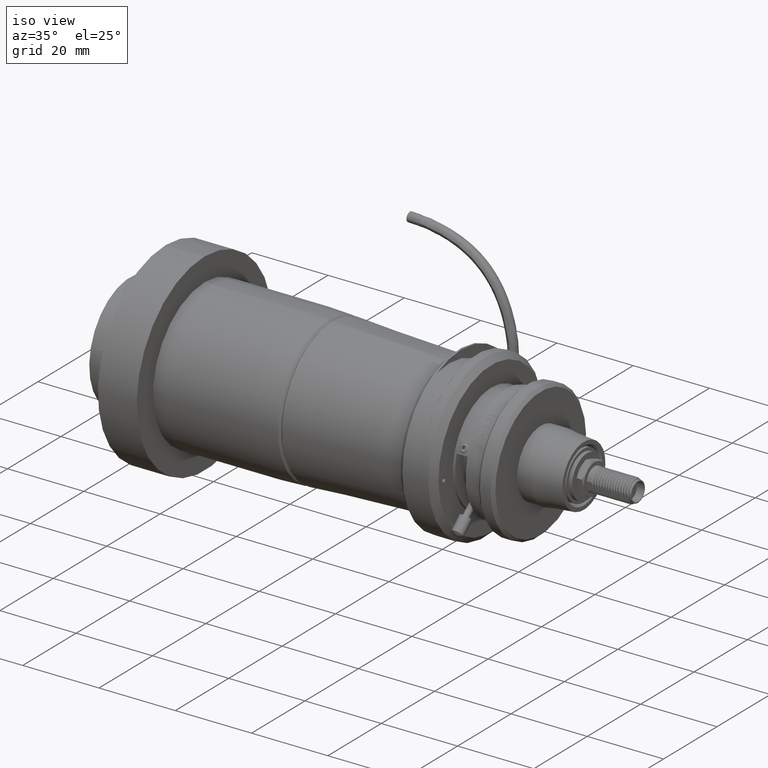
[diagram: clean part render]
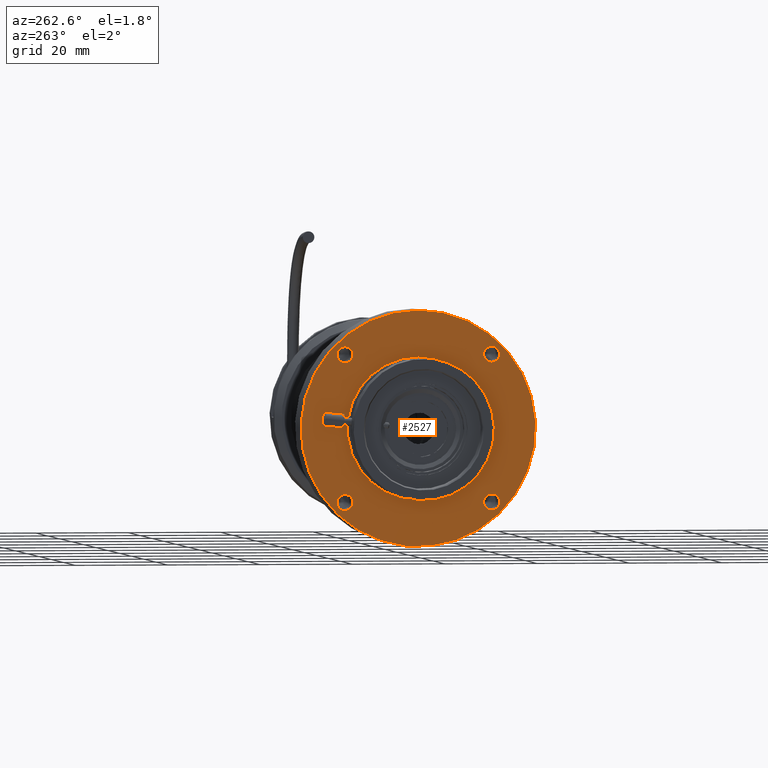
[diagram: tour spotlight — one face highlighted and labeled with its STEP entity id]
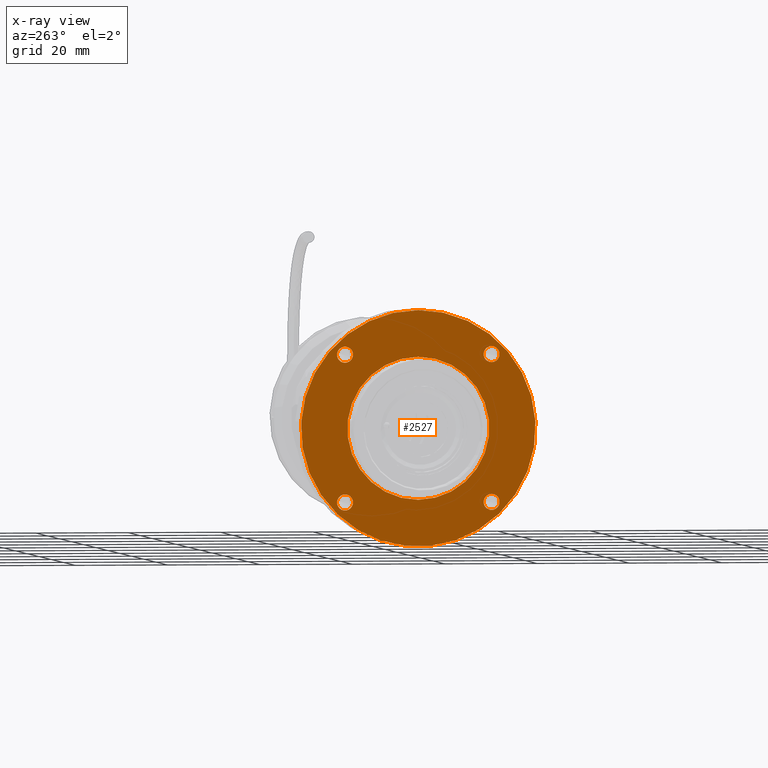
[diagram: x-ray of the same camera — body ghosted, this tour face saturated]
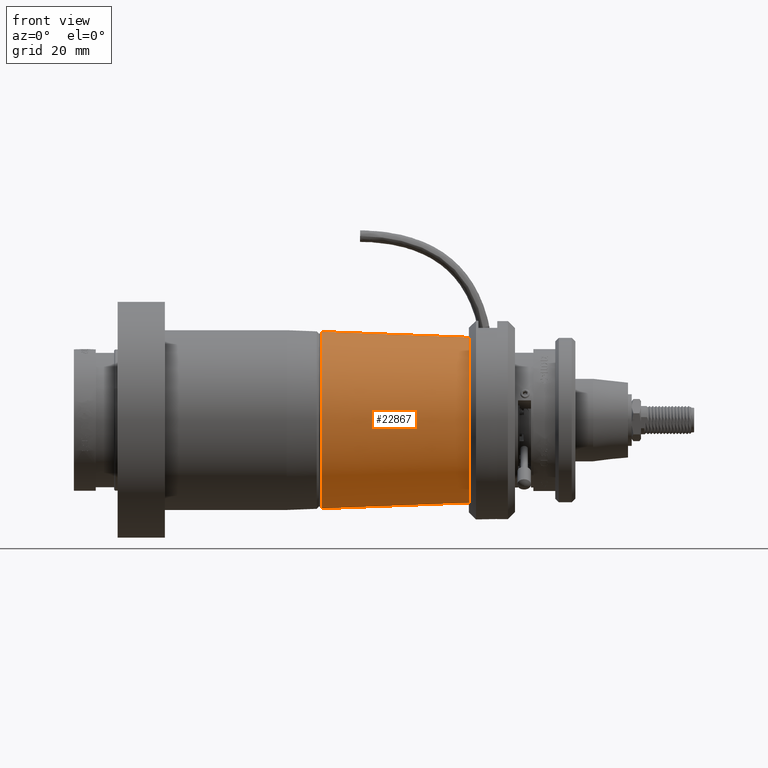
[diagram: tour spotlight — one face highlighted and labeled with its STEP entity id]
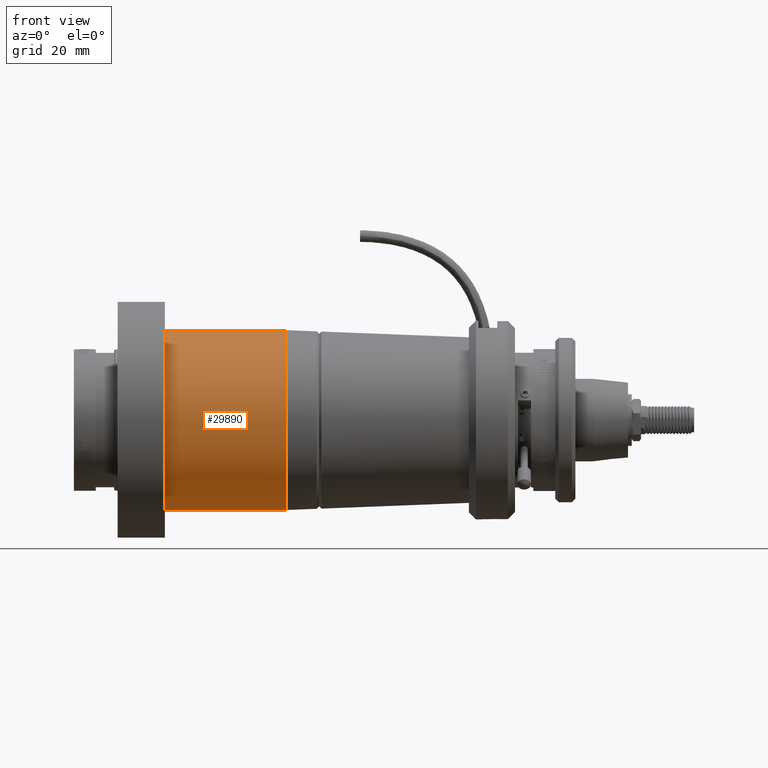
[diagram: tour spotlight — one face highlighted and labeled with its STEP entity id]
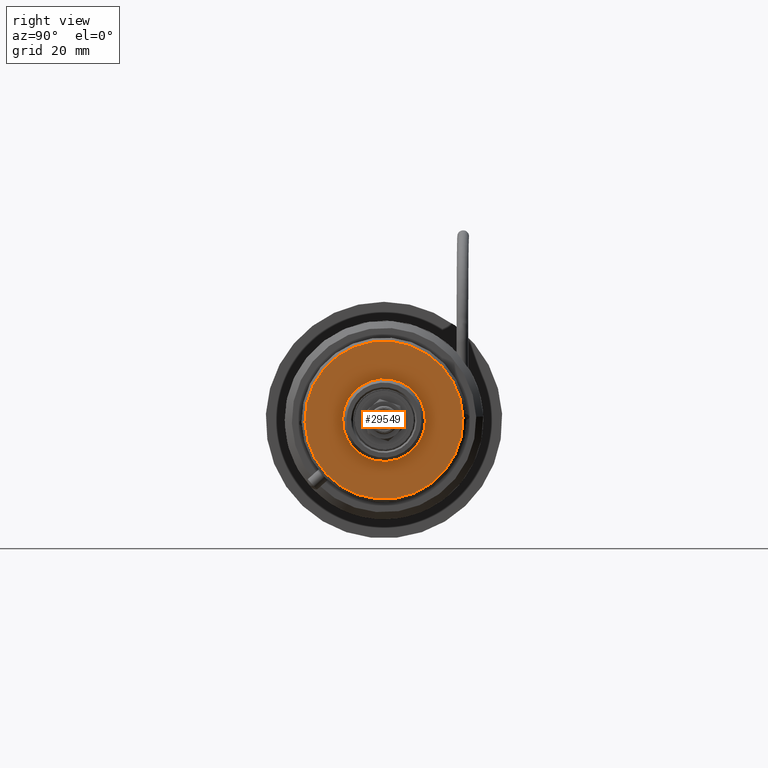
[diagram: tour spotlight — one face highlighted and labeled with its STEP entity id]
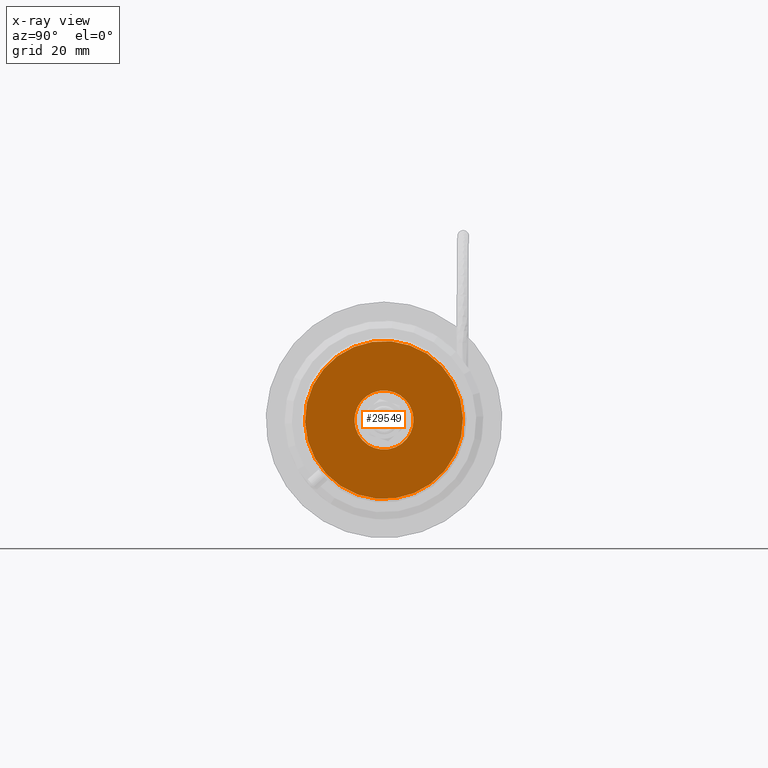
[diagram: x-ray of the same camera — body ghosted, this tour face saturated]
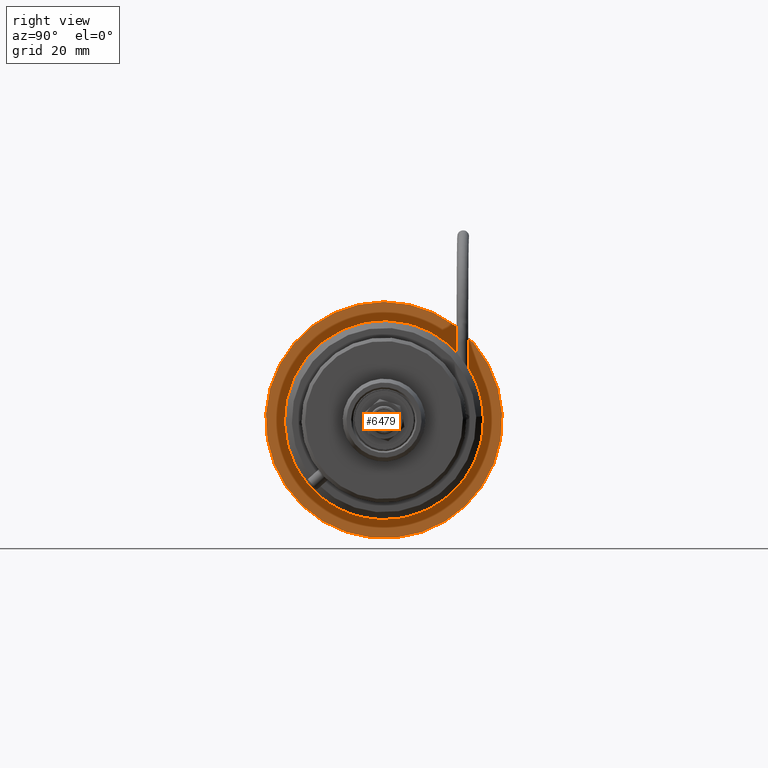
[diagram: tour spotlight — one face highlighted and labeled with its STEP entity id]
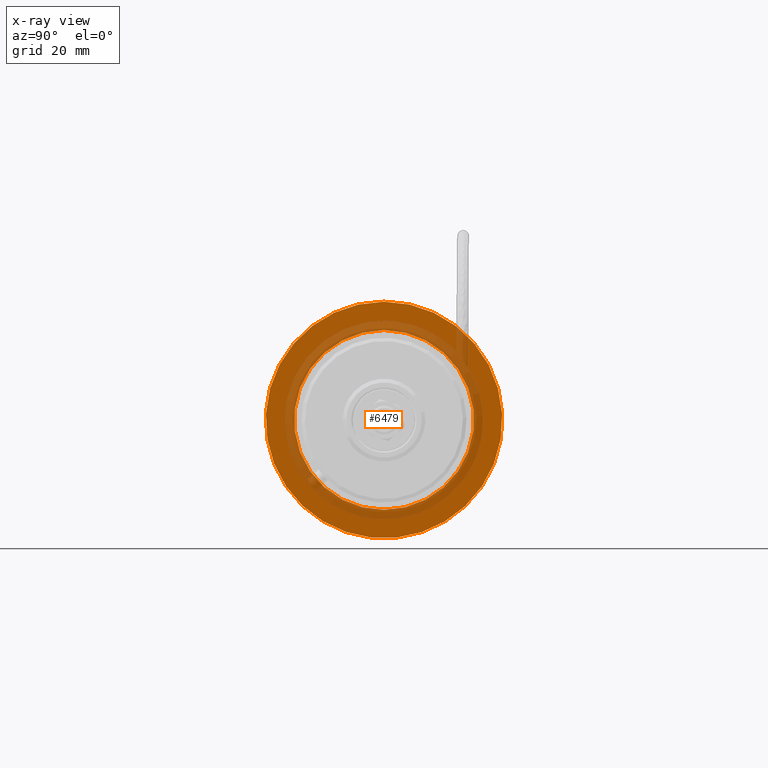
[diagram: x-ray of the same camera — body ghosted, this tour face saturated]
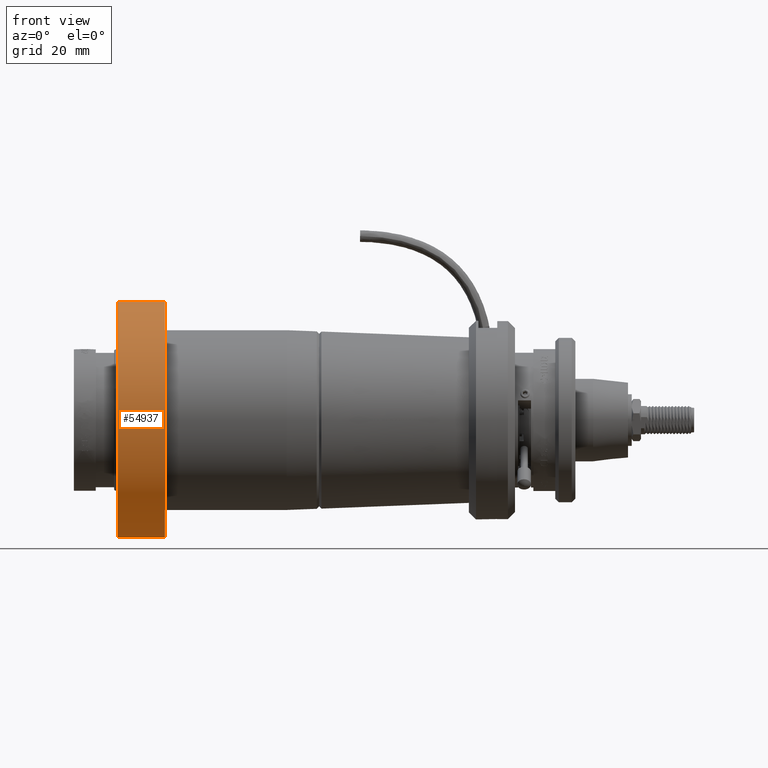
[diagram: tour spotlight — one face highlighted and labeled with its STEP entity id]
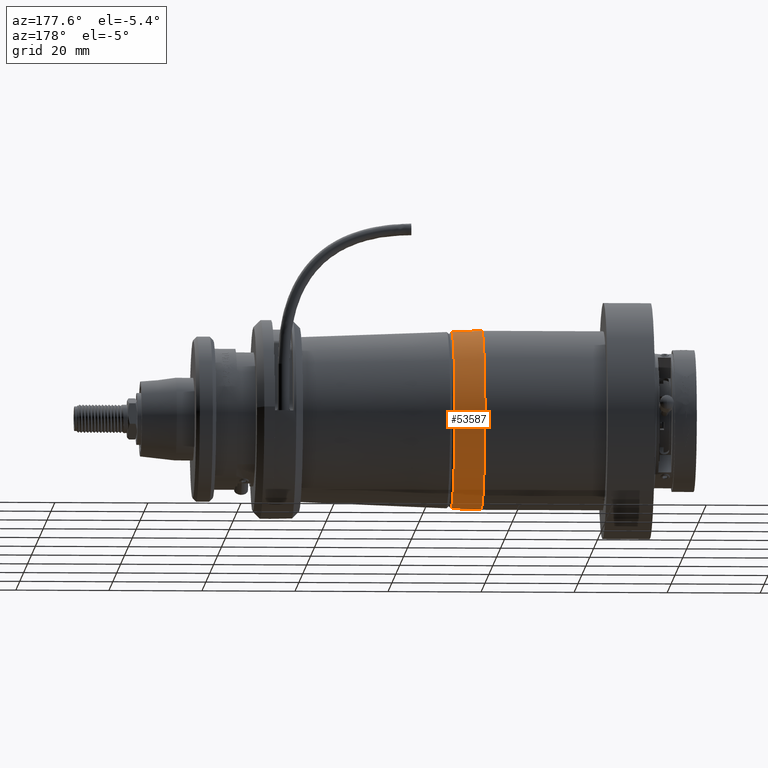
[diagram: tour spotlight — one face highlighted and labeled with its STEP entity id]
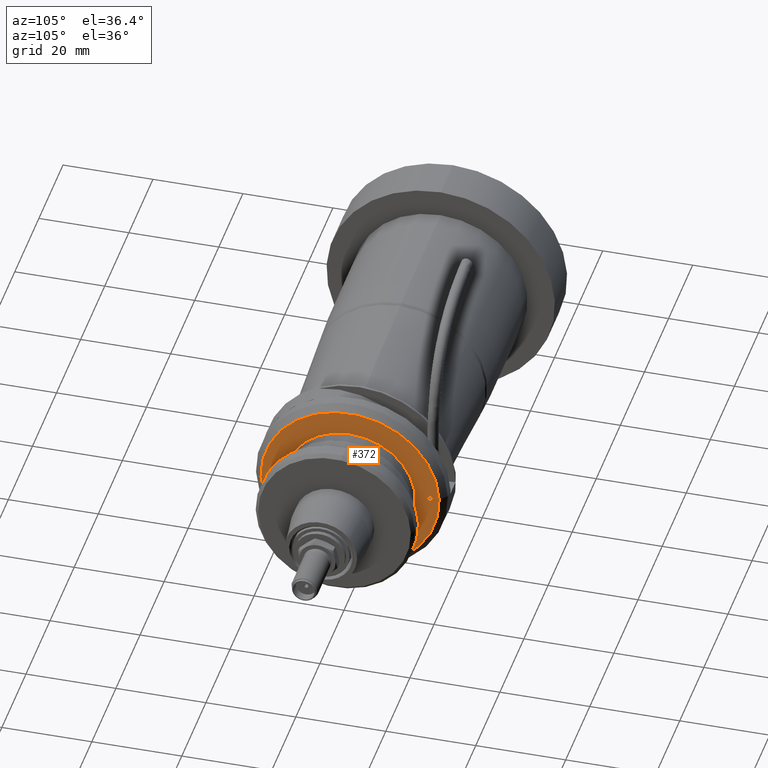
[diagram: tour spotlight — one face highlighted and labeled with its STEP entity id]
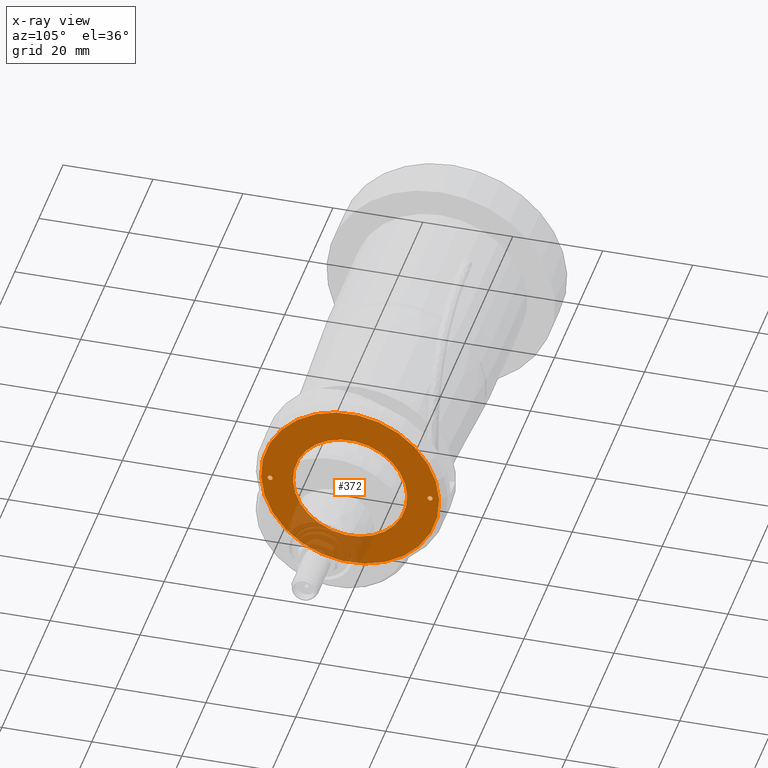
[diagram: x-ray of the same camera — body ghosted, this tour face saturated]
A machine part: a face-by-face anatomy tour. The part has 1286 B-rep faces; the first image is the clean iso view, then the 8 largest visible faces are spotlighted one at a time (largest first), each with its STEP entity span.

Face 1 — auxiliary view, entity #2527. An x-ray twin of the same camera follows (body ghosted, this face saturated) — the face is partly hidden behind the body. In plain terms, the highlighted planar face has unit normal (1, 0, 0).
Definition (entity closure, byte-faithful):
#986 = DIRECTION ( 'NONE',  ( -1.000000000000000000, -0.0000000000000000000, -0.0000000000000000000 ) ) ;
#1406 = DIRECTION ( 'NONE',  ( -1.000000000000000000, -0.0000000000000000000, -0.0000000000000000000 ) ) ;
#1614 = CIRCLE ( 'NONE', #61360, 1.727199999999987900 ) ;
#2527 = ADVANCED_FACE ( 'NONE', ( #60452, #5426, #45653, #49538, #14038, #4002 ), #59393, .F. ) ;
#2673 = AXIS2_PLACEMENT_3D ( 'NONE', #30492, #30435, #30296 ) ;
#2755 = DIRECTION ( 'NONE',  ( 0.0000000000000000000, 0.0000000000000000000, 1.000000000000000000 ) ) ;
#4002 = FACE_OUTER_BOUND ( 'NONE', #26998, .T. ) ;
#4800 = EDGE_LOOP ( 'NONE', ( #55442 ) ) ;
#5426 = FACE_BOUND ( 'NONE', #63394, .T. ) ;
#10509 = CIRCLE ( 'NONE', #11964, 25.39999999999999900 ) ;
#11860 = CARTESIAN_POINT ( 'NONE',  ( -12.17385033969020800, 15.40345842648230100, 14.88301259286225800 ) ) ;
#11964 = AXIS2_PLACEMENT_3D ( 'NONE', #65999, #34719, #2755 ) ;
#13440 = CARTESIAN_POINT ( 'NONE',  ( -12.17385033969020800, 15.40345842648230100, 13.15581259286226900 ) ) ;
#14038 = FACE_BOUND ( 'NONE', #27861, .T. ) ;
#18815 = DIRECTION ( 'NONE',  ( 0.0000000000000000000, 0.0000000000000000000, 1.000000000000000000 ) ) ;
#19059 = ORIENTED_EDGE ( 'NONE', *, *, #20032, .F. ) ;
#19959 = CIRCLE ( 'NONE', #21427, 1.727199999999989400 ) ;
#20032 = EDGE_CURVE ( 'NONE', #33057, #33057, #31066, .T. ) ;
#21427 = AXIS2_PLACEMENT_3D ( 'NONE', #13440, #50280, #18815 ) ;
#22297 = EDGE_LOOP ( 'NONE', ( #19059 ) ) ;
#23639 = EDGE_CURVE ( 'NONE', #58378, #58378, #61113, .T. ) ;
#24261 = CARTESIAN_POINT ( 'NONE',  ( -12.17385033969020800, -16.34654157351752300, 14.88301259286243400 ) ) ;
#24284 = AXIS2_PLACEMENT_3D ( 'NONE', #24564, #61231, #29883 ) ;
#24564 = CARTESIAN_POINT ( 'NONE',  ( -12.17385033969020600, -0.4715415735176992600, -2.719187407137724200 ) ) ;
#25397 = EDGE_CURVE ( 'NONE', #64082, #64082, #1614, .T. ) ;
#26998 = EDGE_LOOP ( 'NONE', ( #33622 ) ) ;
#27241 = ORIENTED_EDGE ( 'NONE', *, *, #23639, .F. ) ;
#27861 = EDGE_LOOP ( 'NONE', ( #68201 ) ) ;
#29883 = DIRECTION ( 'NONE',  ( 0.0000000000000000000, 0.0000000000000000000, 1.000000000000000000 ) ) ;
#30296 = DIRECTION ( 'NONE',  ( 0.0000000000000000000, 0.0000000000000000000, 1.000000000000000000 ) ) ;
#30435 = DIRECTION ( 'NONE',  ( -1.000000000000000000, -0.0000000000000000000, -0.0000000000000000000 ) ) ;
#30492 = CARTESIAN_POINT ( 'NONE',  ( -12.17385033969020800, 15.40345842648223700, -18.59418740713778100 ) ) ;
#30720 = CARTESIAN_POINT ( 'NONE',  ( -12.17385033969020600, -0.4715415735176992600, 22.68081259286227400 ) ) ;
#31066 = CIRCLE ( 'NONE', #2673, 1.727199999999991200 ) ;
#33030 = CARTESIAN_POINT ( 'NONE',  ( -12.17385033969020800, -16.34654157351769800, -18.59418740713771700 ) ) ;
#33057 = VERTEX_POINT ( 'NONE', #55445 ) ;
#33419 = CARTESIAN_POINT ( 'NONE',  ( -12.17385033969020800, -16.34654157351752300, 13.15581259286244300 ) ) ;
#33622 = ORIENTED_EDGE ( 'NONE', *, *, #39039, .T. ) ;
#34719 = DIRECTION ( 'NONE',  ( -1.000000000000000000, -0.0000000000000000000, -0.0000000000000000000 ) ) ;
#35204 = EDGE_CURVE ( 'NONE', #47227, #47227, #54384, .T. ) ;
#35684 = AXIS2_PLACEMENT_3D ( 'NONE', #59686, #59176, #59095 ) ;
#37502 = VERTEX_POINT ( 'NONE', #30720 ) ;
#38263 = DIRECTION ( 'NONE',  ( 0.0000000000000000000, 0.0000000000000000000, 1.000000000000000000 ) ) ;
#38652 = DIRECTION ( 'NONE',  ( 0.0000000000000000000, 0.0000000000000000000, 1.000000000000000000 ) ) ;
#39039 = EDGE_CURVE ( 'NONE', #37502, #37502, #10509, .T. ) ;
#45334 = CARTESIAN_POINT ( 'NONE',  ( -12.17385033969020800, -16.34654157351769800, -16.86698740713773100 ) ) ;
#45653 = FACE_BOUND ( 'NONE', #22297, .T. ) ;
#47227 = VERTEX_POINT ( 'NONE', #51313 ) ;
#49538 = FACE_BOUND ( 'NONE', #4800, .T. ) ;
#50280 = DIRECTION ( 'NONE',  ( -1.000000000000000000, -0.0000000000000000000, -0.0000000000000000000 ) ) ;
#51313 = CARTESIAN_POINT ( 'NONE',  ( -12.17385033969020600, -0.4715415735176992600, 12.64781259286227800 ) ) ;
#52502 = AXIS2_PLACEMENT_3D ( 'NONE', #33419, #1406, #38652 ) ;
#53247 = VERTEX_POINT ( 'NONE', #11860 ) ;
#54384 = CIRCLE ( 'NONE', #24284, 15.36700000000000300 ) ;
#55442 = ORIENTED_EDGE ( 'NONE', *, *, #66595, .F. ) ;
#55445 = CARTESIAN_POINT ( 'NONE',  ( -12.17385033969020800, 15.40345842648223700, -16.86698740713778800 ) ) ;
#58378 = VERTEX_POINT ( 'NONE', #24261 ) ;
#59095 = DIRECTION ( 'NONE',  ( 0.0000000000000000000, 0.0000000000000000000, -1.000000000000000000 ) ) ;
#59176 = DIRECTION ( 'NONE',  ( 1.000000000000000000, 0.0000000000000000000, 0.0000000000000000000 ) ) ;
#59393 = PLANE ( 'NONE',  #35684 ) ;
#59686 = CARTESIAN_POINT ( 'NONE',  ( -12.17385033969020600, 14.89545842648230300, -2.719187407137724200 ) ) ;
#60452 = FACE_BOUND ( 'NONE', #61114, .T. ) ;
#61113 = CIRCLE ( 'NONE', #52502, 1.727199999999991200 ) ;
#61114 = EDGE_LOOP ( 'NONE', ( #27241 ) ) ;
#61231 = DIRECTION ( 'NONE',  ( -1.000000000000000000, -0.0000000000000000000, -0.0000000000000000000 ) ) ;
#61360 = AXIS2_PLACEMENT_3D ( 'NONE', #33030, #986, #38263 ) ;
#62952 = ORIENTED_EDGE ( 'NONE', *, *, #25397, .F. ) ;
#63394 = EDGE_LOOP ( 'NONE', ( #62952 ) ) ;
#64082 = VERTEX_POINT ( 'NONE', #45334 ) ;
#65999 = CARTESIAN_POINT ( 'NONE',  ( -12.17385033969020600, -0.4715415735176992600, -2.719187407137724200 ) ) ;
#66595 = EDGE_CURVE ( 'NONE', #53247, #53247, #19959, .T. ) ;
#68201 = ORIENTED_EDGE ( 'NONE', *, *, #35204, .F. ) ;

Face 2 — front view, entity #22867. In plain terms, the highlighted conical surface has half-angle 2.231 deg.
Definition (entity closure, byte-faithful):
#939 = CARTESIAN_POINT ( 'NONE',  ( 63.26414966030979800, -0.4715415735176992600, 15.06081259286227300 ) ) ;
#2905 = EDGE_CURVE ( 'NONE', #25651, #25651, #13692, .T. ) ;
#7767 = DIRECTION ( 'NONE',  ( 0.0000000000000000000, 0.0000000000000000000, 1.000000000000000000 ) ) ;
#9200 = CARTESIAN_POINT ( 'NONE',  ( 63.26414966030979800, -0.4715415735176992600, -2.719187407137724200 ) ) ;
#9516 = FACE_BOUND ( 'NONE', #55065, .T. ) ;
#10713 = CONICAL_SURFACE ( 'NONE', #23019, 17.77999999999999800, 0.03894134309703932400 ) ;
#11982 = ORIENTED_EDGE ( 'NONE', *, *, #65786, .T. ) ;
#13175 = DIRECTION ( 'NONE',  ( -1.000000000000000000, -0.0000000000000000000, -0.0000000000000000000 ) ) ;
#13692 = CIRCLE ( 'NONE', #27279, 19.01378230013613900 ) ;
#14608 = DIRECTION ( 'NONE',  ( 0.0000000000000000000, 0.0000000000000000000, 1.000000000000000000 ) ) ;
#18976 = EDGE_LOOP ( 'NONE', ( #51973 ) ) ;
#22867 = ADVANCED_FACE ( 'NONE', ( #52436, #9516 ), #10713, .T. ) ;
#23019 = AXIS2_PLACEMENT_3D ( 'NONE', #44723, #13175, #7767 ) ;
#25651 = VERTEX_POINT ( 'NONE', #43532 ) ;
#27279 = AXIS2_PLACEMENT_3D ( 'NONE', #43892, #43825, #43746 ) ;
#27966 = CIRCLE ( 'NONE', #41669, 17.77999999999999800 ) ;
#41669 = AXIS2_PLACEMENT_3D ( 'NONE', #9200, #46107, #14608 ) ;
#43532 = CARTESIAN_POINT ( 'NONE',  ( 31.59707062348224200, -0.4715415735176992600, 16.29459489299841500 ) ) ;
#43746 = DIRECTION ( 'NONE',  ( 0.0000000000000000000, 0.0000000000000000000, 1.000000000000000000 ) ) ;
#43825 = DIRECTION ( 'NONE',  ( -1.000000000000000000, -0.0000000000000000000, -0.0000000000000000000 ) ) ;
#43892 = CARTESIAN_POINT ( 'NONE',  ( 31.59707062348224200, -0.4715415735176992600, -2.719187407137724200 ) ) ;
#44723 = CARTESIAN_POINT ( 'NONE',  ( 63.26414966030979800, -0.4715415735176992600, -2.719187407137724200 ) ) ;
#46107 = DIRECTION ( 'NONE',  ( -1.000000000000000000, -0.0000000000000000000, -0.0000000000000000000 ) ) ;
#51973 = ORIENTED_EDGE ( 'NONE', *, *, #2905, .F. ) ;
#52436 = FACE_OUTER_BOUND ( 'NONE', #18976, .T. ) ;
#55065 = EDGE_LOOP ( 'NONE', ( #11982 ) ) ;
#58818 = VERTEX_POINT ( 'NONE', #939 ) ;
#65786 = EDGE_CURVE ( 'NONE', #58818, #58818, #27966, .T. ) ;

Face 3 — front view, entity #29890. In plain terms, the highlighted cylindrical surface (bore or boss wall) has radius 19.304 mm, axis along (-1, -0, -0).
Definition (entity closure, byte-faithful):
#3374 = DIRECTION ( 'NONE',  ( 0.0000000000000000000, 0.0000000000000000000, 1.000000000000000000 ) ) ;
#8830 = DIRECTION ( 'NONE',  ( -1.000000000000000000, -0.0000000000000000000, -0.0000000000000000000 ) ) ;
#10847 = CARTESIAN_POINT ( 'NONE',  ( -2.013850339690204100, -0.4715415735176992600, -2.719187407137724200 ) ) ;
#13515 = FACE_OUTER_BOUND ( 'NONE', #57424, .T. ) ;
#13585 = FACE_OUTER_BOUND ( 'NONE', #21964, .T. ) ;
#16256 = DIRECTION ( 'NONE',  ( 0.0000000000000000000, 0.0000000000000000000, 1.000000000000000000 ) ) ;
#21964 = EDGE_LOOP ( 'NONE', ( #25365 ) ) ;
#22653 = CARTESIAN_POINT ( 'NONE',  ( 24.14814966030979400, -0.4715415735176992600, -2.719187407137724200 ) ) ;
#25365 = ORIENTED_EDGE ( 'NONE', *, *, #56922, .T. ) ;
#27939 = CARTESIAN_POINT ( 'NONE',  ( -31.60859516714725700, -0.4715415735176992600, -2.719187407137724200 ) ) ;
#27980 = DIRECTION ( 'NONE',  ( 0.0000000000000000000, 0.0000000000000000000, 1.000000000000000000 ) ) ;
#29890 = ADVANCED_FACE ( 'NONE', ( #13585, #13515 ), #47380, .T. ) ;
#32297 = CARTESIAN_POINT ( 'NONE',  ( 24.14814966030979400, -0.4715415735176992600, 16.58481259286227400 ) ) ;
#35323 = CIRCLE ( 'NONE', #62111, 19.30399999999999800 ) ;
#36973 = CIRCLE ( 'NONE', #64277, 19.30399999999999800 ) ;
#43634 = VERTEX_POINT ( 'NONE', #58356 ) ;
#47380 = CYLINDRICAL_SURFACE ( 'NONE', #58816, 19.30399999999999800 ) ;
#47719 = DIRECTION ( 'NONE',  ( -1.000000000000000000, -0.0000000000000000000, -0.0000000000000000000 ) ) ;
#56515 = EDGE_CURVE ( 'NONE', #43634, #43634, #35323, .T. ) ;
#56922 = EDGE_CURVE ( 'NONE', #60383, #60383, #36973, .T. ) ;
#57424 = EDGE_LOOP ( 'NONE', ( #60209 ) ) ;
#58356 = CARTESIAN_POINT ( 'NONE',  ( -2.013850339690204100, -0.4715415735176992600, 16.58481259286227400 ) ) ;
#58816 = AXIS2_PLACEMENT_3D ( 'NONE', #27939, #8830, #3374 ) ;
#59335 = DIRECTION ( 'NONE',  ( -1.000000000000000000, -0.0000000000000000000, -0.0000000000000000000 ) ) ;
#60209 = ORIENTED_EDGE ( 'NONE', *, *, #56515, .F. ) ;
#60383 = VERTEX_POINT ( 'NONE', #32297 ) ;
#62111 = AXIS2_PLACEMENT_3D ( 'NONE', #10847, #47719, #16256 ) ;
#64277 = AXIS2_PLACEMENT_3D ( 'NONE', #22653, #59335, #27980 ) ;

Face 4 — right view, entity #29549. An x-ray twin of the same camera follows (body ghosted, this face saturated) — the face is partly hidden behind the body. In plain terms, the highlighted planar face has unit normal (-1, 0, 0).
Definition (entity closure, byte-faithful):
#5443 = CIRCLE ( 'NONE', #27950, 16.96719999999999800 ) ;
#10824 = DIRECTION ( 'NONE',  ( -1.000000000000000000, 0.0000000000000000000, 0.0000000000000000000 ) ) ;
#10953 = FACE_OUTER_BOUND ( 'NONE', #37736, .T. ) ;
#11146 = FACE_BOUND ( 'NONE', #38572, .T. ) ;
#11516 = CIRCLE ( 'NONE', #12362, 6.350000000000000500 ) ;
#12362 = AXIS2_PLACEMENT_3D ( 'NONE', #42461, #10824, #47701 ) ;
#16593 = AXIS2_PLACEMENT_3D ( 'NONE', #40739, #67014, #35748 ) ;
#18582 = VERTEX_POINT ( 'NONE', #41011 ) ;
#18842 = ORIENTED_EDGE ( 'NONE', *, *, #37689, .T. ) ;
#23380 = DIRECTION ( 'NONE',  ( 1.000000000000000000, 0.0000000000000000000, 0.0000000000000000000 ) ) ;
#23878 = EDGE_CURVE ( 'NONE', #61689, #61689, #11516, .T. ) ;
#27950 = AXIS2_PLACEMENT_3D ( 'NONE', #54794, #23380, #60046 ) ;
#29549 = ADVANCED_FACE ( 'NONE', ( #10953, #11146 ), #61804, .F. ) ;
#29585 = CARTESIAN_POINT ( 'NONE',  ( 86.12414966030979700, 0.1285519487544571900, 3.602393705568731600 ) ) ;
#35748 = DIRECTION ( 'NONE',  ( 0.0000000000000000000, 0.09450291689325295000, 0.9955245846781820600 ) ) ;
#37689 = EDGE_CURVE ( 'NONE', #18582, #18582, #5443, .T. ) ;
#37736 = EDGE_LOOP ( 'NONE', ( #18842 ) ) ;
#38572 = EDGE_LOOP ( 'NONE', ( #54920 ) ) ;
#40739 = CARTESIAN_POINT ( 'NONE',  ( 86.12414966030979700, 17.17831289315872600, -4.394648521321585100 ) ) ;
#41011 = CARTESIAN_POINT ( 'NONE',  ( 86.12414966030979700, 1.131908317993502300, 14.17207732601392500 ) ) ;
#42461 = CARTESIAN_POINT ( 'NONE',  ( 86.12414966030979700, -0.4715415735176992100, -2.719187407137725100 ) ) ;
#47701 = DIRECTION ( 'NONE',  ( 0.0000000000000000000, 0.09450291689325296400, 0.9955245846781820600 ) ) ;
#54794 = CARTESIAN_POINT ( 'NONE',  ( 86.12414966030979700, -0.4715415735176992100, -2.719187407137725100 ) ) ;
#54920 = ORIENTED_EDGE ( 'NONE', *, *, #23878, .T. ) ;
#60046 = DIRECTION ( 'NONE',  ( 0.0000000000000000000, 0.09450291689325296400, 0.9955245846781821700 ) ) ;
#61689 = VERTEX_POINT ( 'NONE', #29585 ) ;
#61804 = PLANE ( 'NONE',  #16593 ) ;
#67014 = DIRECTION ( 'NONE',  ( -1.000000000000000000, 0.0000000000000000000, 0.0000000000000000000 ) ) ;

Face 5 — right view, entity #6479. An x-ray twin of the same camera follows (body ghosted, this face saturated) — the face is partly hidden behind the body. In plain terms, the highlighted planar face has unit normal (-1, 0, 0).
Definition (entity closure, byte-faithful):
#2240 = ORIENTED_EDGE ( 'NONE', *, *, #38629, .F. ) ;
#2431 = AXIS2_PLACEMENT_3D ( 'NONE', #45240, #13713, #50535 ) ;
#6479 = ADVANCED_FACE ( 'NONE', ( #23275, #23293 ), #30936, .F. ) ;
#7938 = EDGE_LOOP ( 'NONE', ( #36832 ) ) ;
#10847 = CARTESIAN_POINT ( 'NONE',  ( -2.013850339690204100, -0.4715415735176992600, -2.719187407137724200 ) ) ;
#13713 = DIRECTION ( 'NONE',  ( -1.000000000000000000, -0.0000000000000000000, -0.0000000000000000000 ) ) ;
#16256 = DIRECTION ( 'NONE',  ( 0.0000000000000000000, 0.0000000000000000000, 1.000000000000000000 ) ) ;
#23275 = FACE_OUTER_BOUND ( 'NONE', #35961, .T. ) ;
#23293 = FACE_BOUND ( 'NONE', #7938, .T. ) ;
#30846 = DIRECTION ( 'NONE',  ( 0.0000000000000000000, 0.0000000000000000000, 1.000000000000000000 ) ) ;
#30936 = PLANE ( 'NONE',  #55476 ) ;
#31448 = CARTESIAN_POINT ( 'NONE',  ( -2.013850339690204100, 24.92845842648230100, -2.719187407137724200 ) ) ;
#31611 = DIRECTION ( 'NONE',  ( -1.000000000000000000, 0.0000000000000000000, 0.0000000000000000000 ) ) ;
#35323 = CIRCLE ( 'NONE', #62111, 19.30399999999999800 ) ;
#35961 = EDGE_LOOP ( 'NONE', ( #2240 ) ) ;
#36832 = ORIENTED_EDGE ( 'NONE', *, *, #56515, .T. ) ;
#38629 = EDGE_CURVE ( 'NONE', #59036, #59036, #51720, .T. ) ;
#43634 = VERTEX_POINT ( 'NONE', #58356 ) ;
#45240 = CARTESIAN_POINT ( 'NONE',  ( -2.013850339690204100, -0.4715415735176992600, -2.719187407137724200 ) ) ;
#47719 = DIRECTION ( 'NONE',  ( -1.000000000000000000, -0.0000000000000000000, -0.0000000000000000000 ) ) ;
#50535 = DIRECTION ( 'NONE',  ( 0.0000000000000000000, 0.0000000000000000000, 1.000000000000000000 ) ) ;
#51720 = CIRCLE ( 'NONE', #2431, 25.39999999999999900 ) ;
#55476 = AXIS2_PLACEMENT_3D ( 'NONE', #31448, #31611, #30846 ) ;
#56515 = EDGE_CURVE ( 'NONE', #43634, #43634, #35323, .T. ) ;
#56801 = CARTESIAN_POINT ( 'NONE',  ( -2.013850339690204100, -0.4715415735176992600, 22.68081259286227400 ) ) ;
#58356 = CARTESIAN_POINT ( 'NONE',  ( -2.013850339690204100, -0.4715415735176992600, 16.58481259286227400 ) ) ;
#59036 = VERTEX_POINT ( 'NONE', #56801 ) ;
#62111 = AXIS2_PLACEMENT_3D ( 'NONE', #10847, #47719, #16256 ) ;

Face 6 — front view, entity #54937. In plain terms, the highlighted cylindrical surface (bore or boss wall) has radius 25.4 mm, axis along (-1, -0, -0).
Definition (entity closure, byte-faithful):
#1054 = CARTESIAN_POINT ( 'NONE',  ( -31.60859516714725700, -0.4715415735176992600, -2.719187407137724200 ) ) ;
#2431 = AXIS2_PLACEMENT_3D ( 'NONE', #45240, #13713, #50535 ) ;
#2755 = DIRECTION ( 'NONE',  ( 0.0000000000000000000, 0.0000000000000000000, 1.000000000000000000 ) ) ;
#10509 = CIRCLE ( 'NONE', #11964, 25.39999999999999900 ) ;
#11243 = ORIENTED_EDGE ( 'NONE', *, *, #39039, .F. ) ;
#11964 = AXIS2_PLACEMENT_3D ( 'NONE', #65999, #34719, #2755 ) ;
#11977 = DIRECTION ( 'NONE',  ( 0.0000000000000000000, 0.0000000000000000000, 1.000000000000000000 ) ) ;
#13713 = DIRECTION ( 'NONE',  ( -1.000000000000000000, -0.0000000000000000000, -0.0000000000000000000 ) ) ;
#21529 = FACE_OUTER_BOUND ( 'NONE', #63198, .T. ) ;
#30720 = CARTESIAN_POINT ( 'NONE',  ( -12.17385033969020600, -0.4715415735176992600, 22.68081259286227400 ) ) ;
#34719 = DIRECTION ( 'NONE',  ( -1.000000000000000000, -0.0000000000000000000, -0.0000000000000000000 ) ) ;
#36363 = FACE_OUTER_BOUND ( 'NONE', #60986, .T. ) ;
#37502 = VERTEX_POINT ( 'NONE', #30720 ) ;
#38629 = EDGE_CURVE ( 'NONE', #59036, #59036, #51720, .T. ) ;
#39039 = EDGE_CURVE ( 'NONE', #37502, #37502, #10509, .T. ) ;
#45240 = CARTESIAN_POINT ( 'NONE',  ( -2.013850339690204100, -0.4715415735176992600, -2.719187407137724200 ) ) ;
#48424 = AXIS2_PLACEMENT_3D ( 'NONE', #1054, #59143, #11977 ) ;
#50535 = DIRECTION ( 'NONE',  ( 0.0000000000000000000, 0.0000000000000000000, 1.000000000000000000 ) ) ;
#51720 = CIRCLE ( 'NONE', #2431, 25.39999999999999900 ) ;
#54937 = ADVANCED_FACE ( 'NONE', ( #21529, #36363 ), #54948, .T. ) ;
#54948 = CYLINDRICAL_SURFACE ( 'NONE', #48424, 25.39999999999999900 ) ;
#56801 = CARTESIAN_POINT ( 'NONE',  ( -2.013850339690204100, -0.4715415735176992600, 22.68081259286227400 ) ) ;
#57894 = ORIENTED_EDGE ( 'NONE', *, *, #38629, .T. ) ;
#59036 = VERTEX_POINT ( 'NONE', #56801 ) ;
#59143 = DIRECTION ( 'NONE',  ( -1.000000000000000000, -0.0000000000000000000, -0.0000000000000000000 ) ) ;
#60986 = EDGE_LOOP ( 'NONE', ( #57894 ) ) ;
#63198 = EDGE_LOOP ( 'NONE', ( #11243 ) ) ;
#65999 = CARTESIAN_POINT ( 'NONE',  ( -12.17385033969020600, -0.4715415735176992600, -2.719187407137724200 ) ) ;

Face 7 — auxiliary view, entity #53587. In plain terms, the highlighted conical surface has half-angle 2.231 deg.
Definition (entity closure, byte-faithful):
#695 = CARTESIAN_POINT ( 'NONE',  ( 30.57875402444772200, -0.4715415735176992600, 16.33426956568806800 ) ) ;
#8810 = DIRECTION ( 'NONE',  ( 0.0000000000000000000, 0.0000000000000000000, 1.000000000000000000 ) ) ;
#9248 = EDGE_LOOP ( 'NONE', ( #49492 ) ) ;
#9596 = FACE_BOUND ( 'NONE', #54609, .T. ) ;
#14224 = DIRECTION ( 'NONE',  ( -1.000000000000000000, -0.0000000000000000000, -0.0000000000000000000 ) ) ;
#15082 = ORIENTED_EDGE ( 'NONE', *, *, #62710, .T. ) ;
#16869 = CIRCLE ( 'NONE', #33259, 19.05345697282579200 ) ;
#22653 = CARTESIAN_POINT ( 'NONE',  ( 24.14814966030979400, -0.4715415735176992600, -2.719187407137724200 ) ) ;
#23657 = DIRECTION ( 'NONE',  ( -1.000000000000000000, -0.0000000000000000000, -0.0000000000000000000 ) ) ;
#26288 = FACE_OUTER_BOUND ( 'NONE', #9248, .T. ) ;
#27980 = DIRECTION ( 'NONE',  ( 0.0000000000000000000, 0.0000000000000000000, 1.000000000000000000 ) ) ;
#31733 = VERTEX_POINT ( 'NONE', #695 ) ;
#32297 = CARTESIAN_POINT ( 'NONE',  ( 24.14814966030979400, -0.4715415735176992600, 16.58481259286227400 ) ) ;
#33259 = AXIS2_PLACEMENT_3D ( 'NONE', #55078, #23657, #60318 ) ;
#36973 = CIRCLE ( 'NONE', #64277, 19.30399999999999800 ) ;
#45734 = CARTESIAN_POINT ( 'NONE',  ( 30.57875402444772200, -0.4715415735176992600, -2.719187407137724200 ) ) ;
#49492 = ORIENTED_EDGE ( 'NONE', *, *, #56922, .F. ) ;
#53587 = ADVANCED_FACE ( 'NONE', ( #26288, #9596 ), #64144, .T. ) ;
#54609 = EDGE_LOOP ( 'NONE', ( #15082 ) ) ;
#55078 = CARTESIAN_POINT ( 'NONE',  ( 30.57875402444772200, -0.4715415735176992600, -2.719187407137724200 ) ) ;
#56922 = EDGE_CURVE ( 'NONE', #60383, #60383, #36973, .T. ) ;
#59335 = DIRECTION ( 'NONE',  ( -1.000000000000000000, -0.0000000000000000000, -0.0000000000000000000 ) ) ;
#59366 = AXIS2_PLACEMENT_3D ( 'NONE', #45734, #14224, #8810 ) ;
#60318 = DIRECTION ( 'NONE',  ( 0.0000000000000000000, 0.0000000000000000000, 1.000000000000000000 ) ) ;
#60383 = VERTEX_POINT ( 'NONE', #32297 ) ;
#62710 = EDGE_CURVE ( 'NONE', #31733, #31733, #16869, .T. ) ;
#64144 = CONICAL_SURFACE ( 'NONE', #59366, 19.05345697282579200, 0.03894134309703944200 ) ;
#64277 = AXIS2_PLACEMENT_3D ( 'NONE', #22653, #59335, #27980 ) ;

Face 8 — auxiliary view, entity #372. An x-ray twin of the same camera follows (body ghosted, this face saturated) — the face is partly hidden behind the body. In plain terms, the highlighted planar face has unit normal (-1, -0, 0).
Definition (entity closure, byte-faithful):
#372 = ADVANCED_FACE ( 'NONE', ( #12936, #55071, #59194, #33236 ), #16967, .F. ) ;
#872 = EDGE_LOOP ( 'NONE', ( #56033 ) ) ;
#2546 = EDGE_CURVE ( 'NONE', #27614, #27614, #66758, .T. ) ;
#6372 = DIRECTION ( 'NONE',  ( 1.000000000000000000, 0.0000000000000000000, 0.0000000000000000000 ) ) ;
#9115 = CIRCLE ( 'NONE', #13007, 19.81199999999999100 ) ;
#11647 = CARTESIAN_POINT ( 'NONE',  ( 73.17014966030980400, -0.9372879761215060500, 9.972269573385101900 ) ) ;
#12936 = FACE_BOUND ( 'NONE', #872, .T. ) ;
#13007 = AXIS2_PLACEMENT_3D ( 'NONE', #20858, #20629, #20411 ) ;
#13158 = AXIS2_PLACEMENT_3D ( 'NONE', #57971, #26596, #63228 ) ;
#16967 = PLANE ( 'NONE',  #67938 ) ;
#17061 = ORIENTED_EDGE ( 'NONE', *, *, #50843, .F. ) ;
#17856 = EDGE_CURVE ( 'NONE', #33181, #33181, #9115, .T. ) ;
#19515 = DIRECTION ( 'NONE',  ( 0.0000000000000000000, -0.9993273213010099900, -0.03667294508691395400 ) ) ;
#20411 = DIRECTION ( 'NONE',  ( 0.0000000000000000000, 0.9993273213010101000, 0.03667294508691396800 ) ) ;
#20629 = DIRECTION ( 'NONE',  ( 1.000000000000000000, 0.0000000000000000000, 0.0000000000000000000 ) ) ;
#20858 = CARTESIAN_POINT ( 'NONE',  ( 73.17014966030980400, -0.4715415735176989300, -2.719187407137723300 ) ) ;
#23917 = VERTEX_POINT ( 'NONE', #42125 ) ;
#26596 = DIRECTION ( 'NONE',  ( 1.000000000000000000, 0.0000000000000000000, 0.0000000000000000000 ) ) ;
#27614 = VERTEX_POINT ( 'NONE', #38294 ) ;
#29127 = CARTESIAN_POINT ( 'NONE',  ( 73.17014966030980400, 19.32713131609790500, -1.992623019075784100 ) ) ;
#33181 = VERTEX_POINT ( 'NONE', #29127 ) ;
#33236 = FACE_OUTER_BOUND ( 'NONE', #44907, .T. ) ;
#38165 = CARTESIAN_POINT ( 'NONE',  ( 73.17014966030980400, -18.23958134624965100, -3.371232370783053200 ) ) ;
#38294 = CARTESIAN_POINT ( 'NONE',  ( 73.17014966030980400, 12.21991540700512900, -2.253441004533916400 ) ) ;
#42125 = CARTESIAN_POINT ( 'NONE',  ( 73.17014966030980400, -17.69384869608717300, -3.351205275471089300 ) ) ;
#42641 = AXIS2_PLACEMENT_3D ( 'NONE', #58257, #58194, #58126 ) ;
#43409 = DIRECTION ( 'NONE',  ( 0.0000000000000000000, 0.9993273213010101000, 0.03667294508691420300 ) ) ;
#44907 = EDGE_LOOP ( 'NONE', ( #62668 ) ) ;
#45894 = DIRECTION ( 'NONE',  ( -1.000000000000000000, -0.0000000000000000000, 0.0000000000000000000 ) ) ;
#49634 = AXIS2_PLACEMENT_3D ( 'NONE', #38165, #6372, #43409 ) ;
#49674 = VERTEX_POINT ( 'NONE', #58576 ) ;
#50081 = CIRCLE ( 'NONE', #13158, 0.5460999999999979200 ) ;
#50843 = EDGE_CURVE ( 'NONE', #23917, #23917, #65840, .T. ) ;
#53814 = EDGE_LOOP ( 'NONE', ( #17061 ) ) ;
#54828 = ORIENTED_EDGE ( 'NONE', *, *, #2546, .F. ) ;
#55071 = FACE_BOUND ( 'NONE', #53814, .T. ) ;
#56033 = ORIENTED_EDGE ( 'NONE', *, *, #58640, .F. ) ;
#57971 = CARTESIAN_POINT ( 'NONE',  ( 73.17014966030980400, 17.29649819921425500, -2.067142443492393500 ) ) ;
#58126 = DIRECTION ( 'NONE',  ( 0.0000000000000000000, 0.9993273213010099900, 0.03667294508691393300 ) ) ;
#58194 = DIRECTION ( 'NONE',  ( 1.000000000000000000, 0.0000000000000000000, 0.0000000000000000000 ) ) ;
#58257 = CARTESIAN_POINT ( 'NONE',  ( 73.17014966030980400, -0.4715415735176989300, -2.719187407137723300 ) ) ;
#58576 = CARTESIAN_POINT ( 'NONE',  ( 73.17014966030980400, 17.84223084937673700, -2.047115348180429600 ) ) ;
#58640 = EDGE_CURVE ( 'NONE', #49674, #49674, #50081, .T. ) ;
#59194 = FACE_BOUND ( 'NONE', #60500, .T. ) ;
#60500 = EDGE_LOOP ( 'NONE', ( #54828 ) ) ;
#62668 = ORIENTED_EDGE ( 'NONE', *, *, #17856, .T. ) ;
#63228 = DIRECTION ( 'NONE',  ( 0.0000000000000000000, 0.9993273213010101000, 0.03667294508691420300 ) ) ;
#65840 = CIRCLE ( 'NONE', #49634, 0.5460999999999979200 ) ;
#66758 = CIRCLE ( 'NONE', #42641, 12.70000000000000100 ) ;
#67938 = AXIS2_PLACEMENT_3D ( 'NONE', #11647, #45894, #19515 ) ;